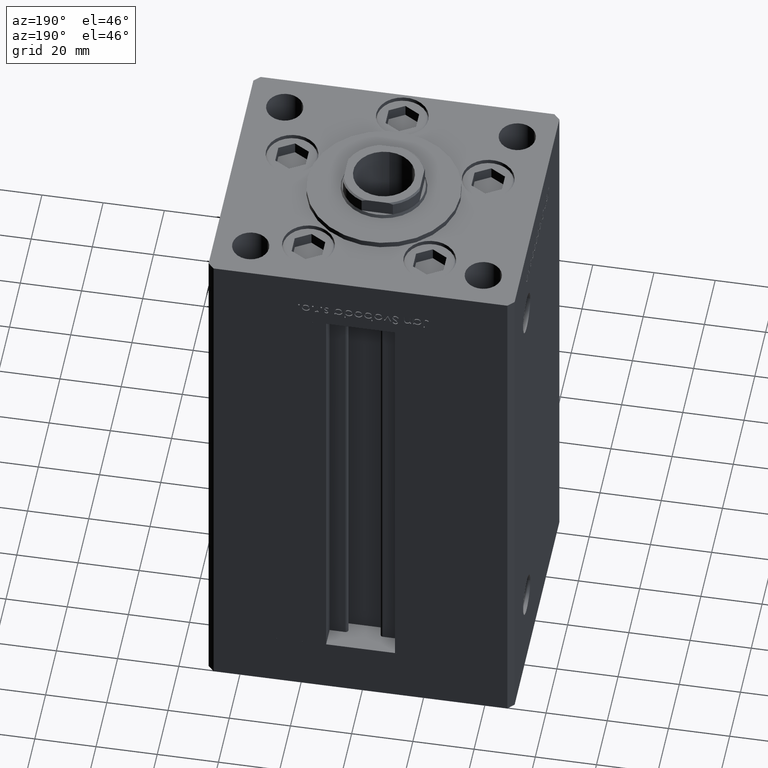
[diagram: clean part render]
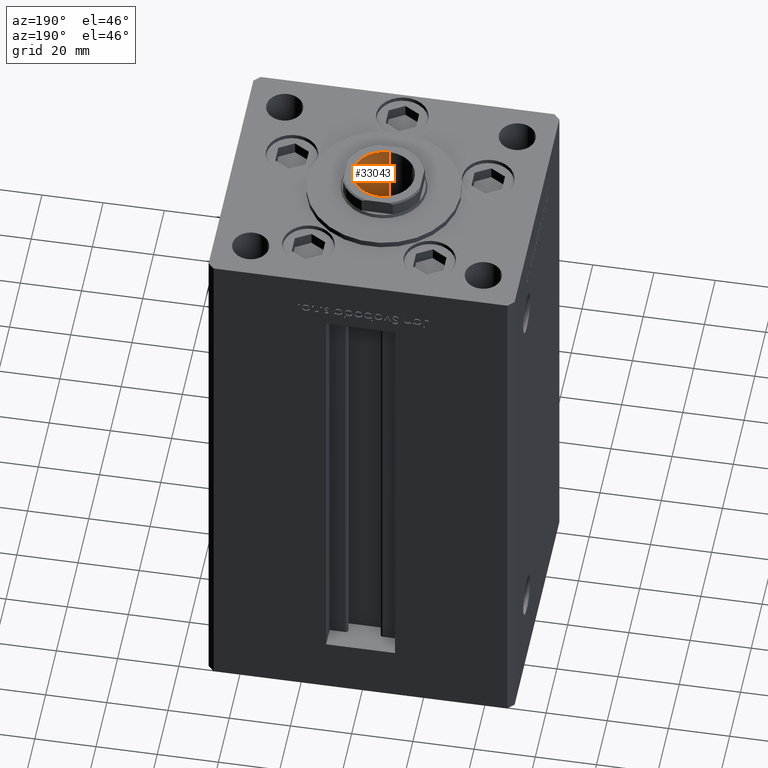
[diagram: same view with one face highlighted and labeled with its STEP entity id]
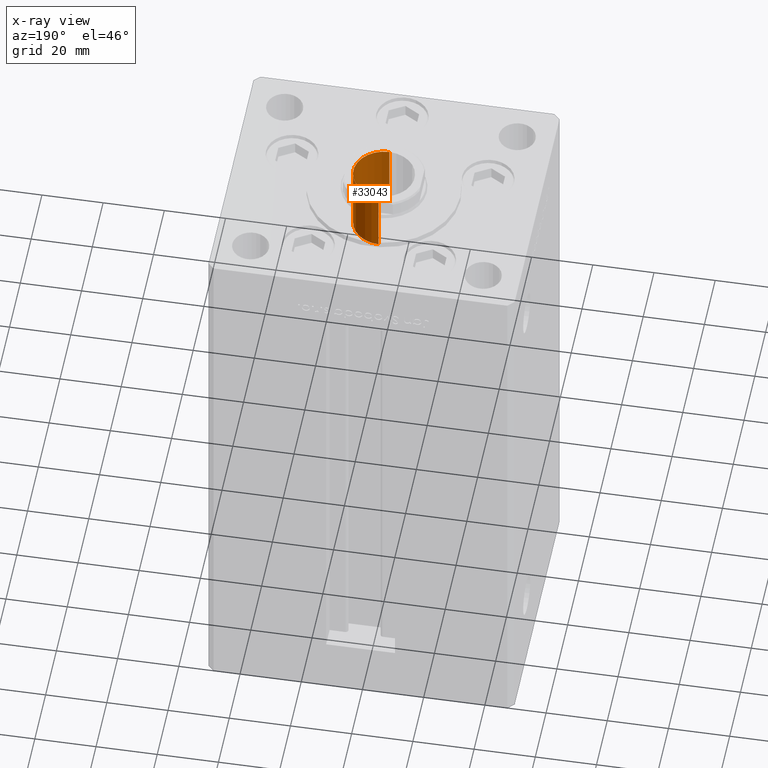
[diagram: x-ray of the same camera — body ghosted, the highlighted face saturated]
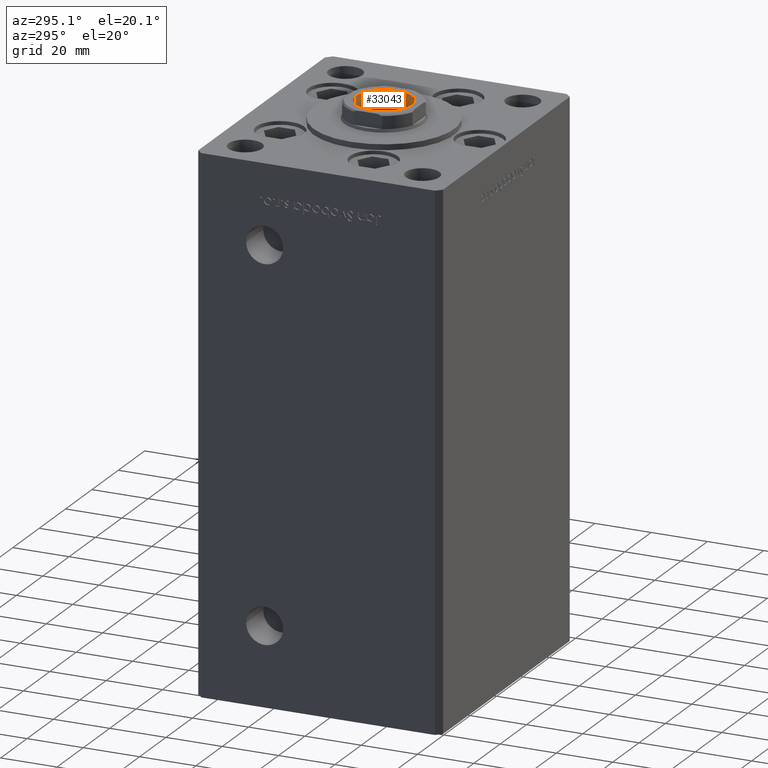
[diagram: same view with one face highlighted and labeled with its STEP entity id]
A machine part, auxiliary view. The second image highlights one B-rep face of the part: STEP entity #33043.
The next image is the same camera in x-ray: the body ghosted, the highlighted face saturated — about 2% of this face is hidden behind the body in this view.
A second angle (auxiliary view) of the same face is appended — the face is thin or edge-on in the first view.
In plain terms, the highlighted cylindrical surface (edge-blend (fillet) strip) has radius 10 mm, axis along (-0, -0, 1).
Its self-contained STEP definition (entity closure, byte-faithful):
#1153 = ORIENTED_EDGE ( 'NONE', *, *, #44769, .T. ) ;
#1352 = CARTESIAN_POINT ( 'NONE',  ( 0.000000000000000000, 0.000000000000000000, 0.000000000000000000 ) ) ;
#3729 = AXIS2_PLACEMENT_3D ( 'NONE', #42096, #46808, #34493 ) ;
#5824 = VERTEX_POINT ( 'NONE', #30764 ) ;
#8868 = EDGE_CURVE ( 'NONE', #31146, #42582, #28860, .T. ) ;
#9111 = AXIS2_PLACEMENT_3D ( 'NONE', #48293, #44354, #43833 ) ;
#9483 = CYLINDRICAL_SURFACE ( 'NONE', #24767, 9.999999999999996447 ) ;
#13081 = LINE ( 'NONE', #24636, #51565 ) ;
#13841 = LINE ( 'NONE', #26443, #24243 ) ;
#17221 = CARTESIAN_POINT ( 'NONE',  ( -6.123233995736764310E-16, 0.000000000000000000, -9.999999999999998224 ) ) ;
#22236 = EDGE_LOOP ( 'NONE', ( #22338, #1153, #22531, #29923 ) ) ;
#22338 = ORIENTED_EDGE ( 'NONE', *, *, #43054, .F. ) ;
#22531 = ORIENTED_EDGE ( 'NONE', *, *, #8868, .T. ) ;
#23137 = CARTESIAN_POINT ( 'NONE',  ( -22.39000000000000057, 1.224646799147352665E-15, 9.999999999999994671 ) ) ;
#24243 = VECTOR ( 'NONE', #25917, 1000.000000000000000 ) ;
#24636 = CARTESIAN_POINT ( 'NONE',  ( 0.000000000000000000, 0.000000000000000000, -9.999999999999996447 ) ) ;
#24767 = AXIS2_PLACEMENT_3D ( 'NONE', #1352, #45700, #38099 ) ;
#25917 = DIRECTION ( 'NONE',  ( 1.000000000000000000, -0.000000000000000000, -0.000000000000000000 ) ) ;
#26443 = CARTESIAN_POINT ( 'NONE',  ( 0.000000000000000000, 1.224646799147352862E-15, 9.999999999999996447 ) ) ;
#27849 = EDGE_CURVE ( 'NONE', #5824, #42582, #13081, .T. ) ;
#28860 = CIRCLE ( 'NONE', #3729, 9.999999999999998224 ) ;
#29923 = ORIENTED_EDGE ( 'NONE', *, *, #27849, .F. ) ;
#30764 = CARTESIAN_POINT ( 'NONE',  ( -22.39000000000000057, 0.000000000000000000, -9.999999999999994671 ) ) ;
#31146 = VERTEX_POINT ( 'NONE', #51788 ) ;
#33043 = ADVANCED_FACE ( 'NONE', ( #37325 ), #9483, .F. ) ;
#34493 = DIRECTION ( 'NONE',  ( 0.000000000000000000, 0.000000000000000000, -1.000000000000000000 ) ) ;
#37241 = DIRECTION ( 'NONE',  ( 1.000000000000000000, -0.000000000000000000, -0.000000000000000000 ) ) ;
#37325 = FACE_OUTER_BOUND ( 'NONE', #22236, .T. ) ;
#38099 = DIRECTION ( 'NONE',  ( 0.000000000000000000, 0.000000000000000000, -1.000000000000000000 ) ) ;
#40148 = CIRCLE ( 'NONE', #9111, 9.999999999999994671 ) ;
#42096 = CARTESIAN_POINT ( 'NONE',  ( -6.123233995736764310E-16, 0.000000000000000000, 0.000000000000000000 ) ) ;
#42582 = VERTEX_POINT ( 'NONE', #17221 ) ;
#43054 = EDGE_CURVE ( 'NONE', #44299, #5824, #40148, .T. ) ;
#43833 = DIRECTION ( 'NONE',  ( 0.000000000000000000, 0.000000000000000000, -1.000000000000000000 ) ) ;
#44299 = VERTEX_POINT ( 'NONE', #23137 ) ;
#44354 = DIRECTION ( 'NONE',  ( 1.000000000000000000, -0.000000000000000000, -0.000000000000000000 ) ) ;
#44769 = EDGE_CURVE ( 'NONE', #44299, #31146, #13841, .T. ) ;
#45700 = DIRECTION ( 'NONE',  ( 1.000000000000000000, -0.000000000000000000, -0.000000000000000000 ) ) ;
#46808 = DIRECTION ( 'NONE',  ( 1.000000000000000000, -0.000000000000000000, -0.000000000000000000 ) ) ;
#48293 = CARTESIAN_POINT ( 'NONE',  ( -22.39000000000000057, 0.000000000000000000, 0.000000000000000000 ) ) ;
#51565 = VECTOR ( 'NONE', #37241, 1000.000000000000000 ) ;
#51788 = CARTESIAN_POINT ( 'NONE',  ( -6.123233995736764310E-16, 1.224646799147353059E-15, 9.999999999999998224 ) ) ;